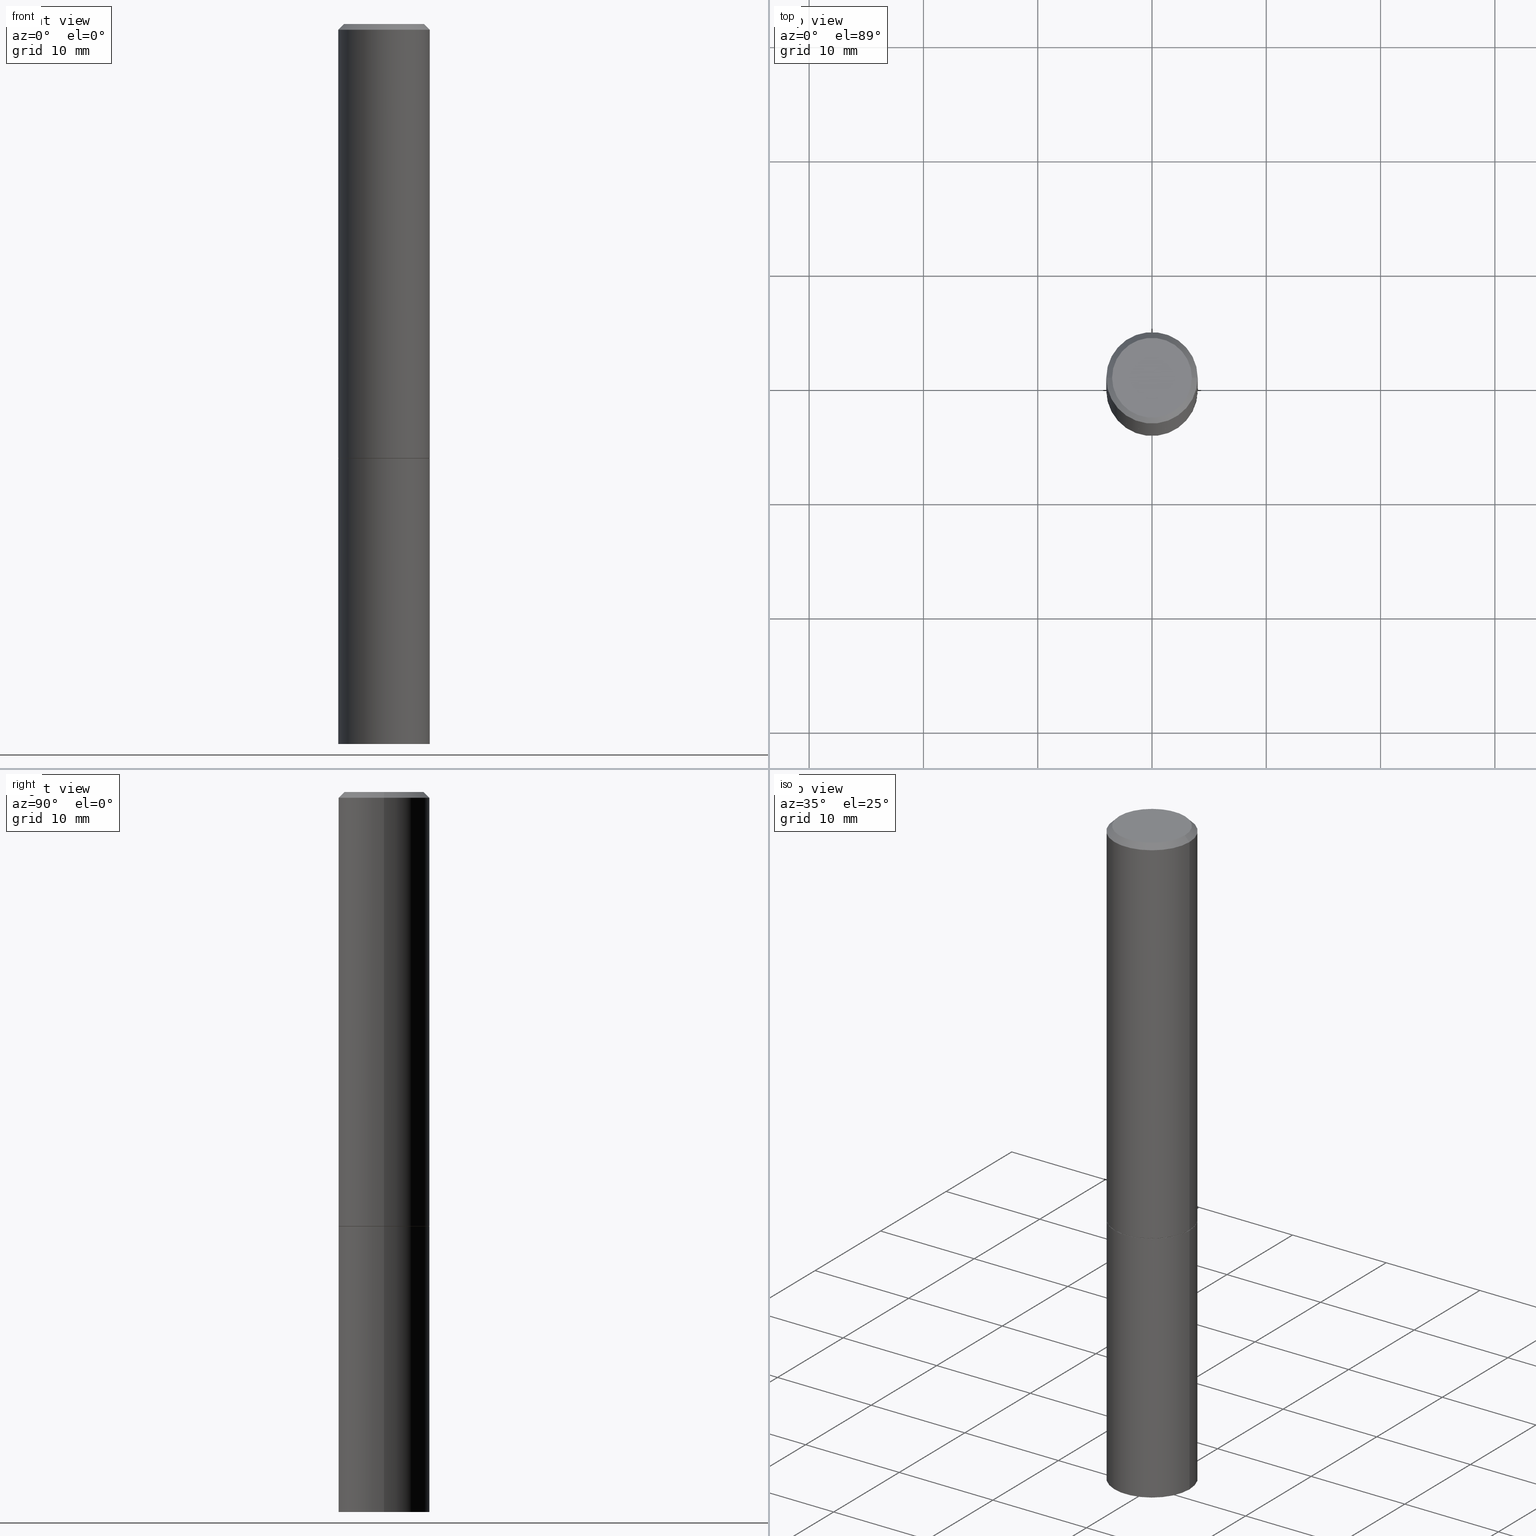
[diagram: canonical four-view strip — front | top / right | iso, engineering-drawing reading convention]
A machine part, canonical four-view strip (front | top / right | iso — engineering-drawing reading convention). The complete STEP part file that produces these views, byte-faithful:
ISO-10303-21;
HEADER;
FILE_DESCRIPTION (( 'STEP AP203' ),
    '1' );
FILE_NAME ('83028.STEP',
    '2024-02-29T21:57:05',
    ( '' ),
    ( '' ),
    'SwSTEP 2.0',
    'SolidWorks 2023',
    '' );
FILE_SCHEMA (( 'CONFIG_CONTROL_DESIGN' ));
ENDSEC;

DATA;
#1 = DIRECTION ( 'NONE',  ( 1.000000000000000000, -6.982962677686266711E-15, 4.876176775795935793E-29 ) ) ;
#2 = AXIS2_PLACEMENT_3D ( 'NONE', #198, #86, #286 ) ;
#3 = CARTESIAN_POINT ( 'NONE',  ( 0.000000000000000000, 0.000000000000000000, 0.000000000000000000 ) ) ;
#4 = ADVANCED_FACE ( 'NONE', ( #124 ), #243, .F. ) ;
#5 = CARTESIAN_POINT ( 'NONE',  ( -2.087702828670439639E-46, 2.980686340760894400E-32, 8.537024980200822558E-18 ) ) ;
#6 = SECURITY_CLASSIFICATION_LEVEL ( 'unclassified' ) ;
#7 = CARTESIAN_POINT ( 'NONE',  ( 0.1575000000000000011, -6.319581223306091410E-15, -1.495000000000000329 ) ) ;
#8 = ORIENTED_EDGE ( 'NONE', *, *, #92, .T. ) ;
#9 = DIRECTION ( 'NONE',  ( -1.000000000000000000, 6.982962677686265922E-15, -4.876176775795935793E-29 ) ) ;
#10 = LENGTH_MEASURE_WITH_UNIT ( LENGTH_MEASURE( 0.02539999999999999897 ), #258 );
#11 = ORIENTED_EDGE ( 'NONE', *, *, #112, .F. ) ;
#12 = VECTOR ( 'NONE', #19, 39.37007874015748143 ) ;
#13 = EDGE_LOOP ( 'NONE', ( #132, #332 ) ) ;
#14 = ORIENTED_EDGE ( 'NONE', *, *, #181, .T. ) ;
#15 = ORIENTED_EDGE ( 'NONE', *, *, #239, .T. ) ;
#16 = CIRCLE ( 'NONE', #325, 0.1574999999999998346 ) ;
#17 = LOCAL_TIME ( 16, 57, 5.000000000000000000, #71 ) ;
#18 = ORIENTED_EDGE ( 'NONE', *, *, #103, .T. ) ;
#19 = DIRECTION ( 'NONE',  ( -2.445468806185136877E-29, 3.491481338843145188E-15, 1.000000000000000000 ) ) ;
#20 = CARTESIAN_POINT ( 'NONE',  ( 6.065496279980994755E-29, -8.659921164732655335E-15, -2.480300000000000171 ) ) ;
#21 = PERSON_AND_ORGANIZATION ( #180, #343 ) ;
#22 = EDGE_CURVE ( 'NONE', #356, #355, #68, .T. ) ;
#23 = DIRECTION ( 'NONE',  ( 1.000000000000000000, -6.982962677686267499E-15, 0.000000000000000000 ) ) ;
#24 = AXIS2_PLACEMENT_3D ( 'NONE', #263, #67, #266 ) ;
#25 = CC_DESIGN_APPROVAL ( #49, ( #77 ) ) ;
#26 = DIRECTION ( 'NONE',  ( -2.445468806185136597E-29, 3.491481338843145583E-15, 1.000000000000000000 ) ) ;
#27 = CARTESIAN_POINT ( 'NONE',  ( -0.1565000000000000002, -4.111256701444791131E-15, -1.496000000000000663 ) ) ;
#28 = DESIGN_CONTEXT ( 'detailed design', #81, 'design' ) ;
#29 = DIRECTION ( 'NONE',  ( -2.445468806185136877E-29, 3.491481338843145188E-15, 1.000000000000000000 ) ) ;
#30 = CARTESIAN_POINT ( 'NONE',  ( -2.087702828670439639E-46, 2.980686340760894400E-32, 8.537024980200822558E-18 ) ) ;
#31 = APPROVAL_STATUS ( 'not_yet_approved' ) ;
#32 = AXIS2_PLACEMENT_3D ( 'NONE', #54, #365, #252 ) ;
#33 = CARTESIAN_POINT ( 'NONE',  ( 3.658421334052965846E-29, -5.223256082909347726E-15, -1.496000000000000663 ) ) ;
#34 = LOCAL_TIME ( 16, 57, 5.000000000000000000, #342 ) ;
#35 = CALENDAR_DATE ( 2024, 29, 2 ) ;
#36 = FACE_OUTER_BOUND ( 'NONE', #276, .T. ) ;
#37 = DIRECTION ( 'NONE',  ( -2.445468806185136597E-29, 3.491481338843145583E-15, 1.000000000000000000 ) ) ;
#38 = APPROVAL_DATE_TIME ( #366, #99 ) ;
#39 = DIRECTION ( 'NONE',  ( -1.000000000000000000, 6.982962677686265922E-15, 0.000000000000000000 ) ) ;
#40 = CIRCLE ( 'NONE', #341, 0.1575000000000000011 ) ;
#41 = ADVANCED_FACE ( 'NONE', ( #135 ), #254, .F. ) ;
#42 = ORIENTED_EDGE ( 'NONE', *, *, #22, .F. ) ;
#43 = APPLICATION_PROTOCOL_DEFINITION ( 'international standard', 'config_control_design', 1994, #81 ) ;
#44 = VERTEX_POINT ( 'NONE', #111 ) ;
#45 = APPROVAL_DATE_TIME ( #354, #49 ) ;
#46 = ORIENTED_EDGE ( 'NONE', *, *, #70, .F. ) ;
#47 = ADVANCED_FACE ( 'NONE', ( #202 ), #174, .T. ) ;
#48 = ORIENTED_EDGE ( 'NONE', *, *, #103, .F. ) ;
#49 = APPROVAL ( #326, 'UNSPECIFIED' ) ;
#50 = ORIENTED_EDGE ( 'NONE', *, *, #318, .F. ) ;
#51 = CLOSED_SHELL ( 'NONE', ( #108, #294, #4, #253 ) ) ;
#52 = CARTESIAN_POINT ( 'NONE',  ( -0.1574999999999998346, 1.029986994958722604E-15, -0.02000000000000003511 ) ) ;
#53 = CARTESIAN_POINT ( 'NONE',  ( -0.1575000000000000011, -5.822483814998842744E-15, -2.480300000000000171 ) ) ;
#54 = CARTESIAN_POINT ( 'NONE',  ( 3.658421334052965846E-29, -5.223256082909347726E-15, -1.496000000000000663 ) ) ;
#55 = EDGE_CURVE ( 'NONE', #300, #303, #228, .T. ) ;
#56 = DIRECTION ( 'NONE',  ( 1.000000000000000000, -6.982962677686265922E-15, 0.000000000000000000 ) ) ;
#57 = DIRECTION ( 'NONE',  ( -2.445468806185136597E-29, 3.491481338843145583E-15, 1.000000000000000000 ) ) ;
#58 = DIRECTION ( 'NONE',  ( -2.445468806185136597E-29, 3.491481338843145583E-15, 1.000000000000000000 ) ) ;
#59 = DIRECTION ( 'NONE',  ( 1.000000000000000000, -6.982962677686261977E-15, 0.000000000000000000 ) ) ;
#60 = DIRECTION ( 'NONE',  ( 1.000000000000000000, -6.982962677686267499E-15, 0.000000000000000000 ) ) ;
#61 = APPLICATION_CONTEXT ( 'configuration controlled 3d designs of mechanical parts and assemblies' ) ;
#62 = COORDINATED_UNIVERSAL_TIME_OFFSET ( 5, 0, .BEHIND. ) ;
#63 = AXIS2_PLACEMENT_3D ( 'NONE', #84, #199, #284 ) ;
#64 = CARTESIAN_POINT ( 'NONE',  ( 3.658421334052965286E-29, -5.223256082909346937E-15, -1.496000000000000441 ) ) ;
#65 =( GEOMETRIC_REPRESENTATION_CONTEXT ( 3 ) GLOBAL_UNCERTAINTY_ASSIGNED_CONTEXT ( ( #105 ) ) GLOBAL_UNIT_ASSIGNED_CONTEXT ( ( #126, #150, #297 ) ) REPRESENTATION_CONTEXT ( 'NONE', 'WORKASPACE' ) );
#66 = ADVANCED_FACE ( 'NONE', ( #340 ), #90, .T. ) ;
#67 = DIRECTION ( 'NONE',  ( 2.445468806185136597E-29, -3.491481338843145583E-15, -1.000000000000000000 ) ) ;
#68 = CIRCLE ( 'NONE', #241, 0.1575000000000000011 ) ;
#69 = CALENDAR_DATE ( 2024, 29, 2 ) ;
#70 = EDGE_CURVE ( 'NONE', #355, #218, #110, .T. ) ;
#71 = COORDINATED_UNIVERSAL_TIME_OFFSET ( 5, 0, .BEHIND. ) ;
#72 = ORIENTED_EDGE ( 'NONE', *, *, #112, .T. ) ;
#73 = COORDINATED_UNIVERSAL_TIME_OFFSET ( 5, 0, .BEHIND. ) ;
#74 = ORIENTED_EDGE ( 'NONE', *, *, #133, .F. ) ;
#75 = PERSON_AND_ORGANIZATION_ROLE ( 'creator' ) ;
#76 = VECTOR ( 'NONE', #195, 39.37007874015748143 ) ;
#77 = PRODUCT_DEFINITION_FORMATION_WITH_SPECIFIED_SOURCE ( 'ANY', '', #335, .NOT_KNOWN. ) ;
#78 = VERTEX_POINT ( 'NONE', #259 ) ;
#79 = ORIENTED_EDGE ( 'NONE', *, *, #55, .T. ) ;
#80 = CARTESIAN_POINT ( 'NONE',  ( -0.1574999999999998901, 1.119104808822157012E-15, -7.747322767151471379E-30 ) ) ;
#81 = APPLICATION_CONTEXT ( 'configuration controlled 3d designs of mechanical parts and assemblies' ) ;
#82 = CC_DESIGN_APPROVAL ( #99, ( #178 ) ) ;
#83 = EDGE_CURVE ( 'NONE', #44, #327, #116, .T. ) ;
#84 = CARTESIAN_POINT ( 'NONE',  ( 0.000000000000000000, 0.000000000000000000, 0.000000000000000000 ) ) ;
#85 = DIRECTION ( 'NONE',  ( -2.445468806185136877E-29, 3.491481338843145188E-15, 1.000000000000000000 ) ) ;
#86 = DIRECTION ( 'NONE',  ( -2.445468806185136597E-29, 3.491481338843145583E-15, 1.000000000000000000 ) ) ;
#87 = LINE ( 'NONE', #165, #12 ) ;
#88 = DIRECTION ( 'NONE',  ( -2.445468806185136597E-29, 3.491481338843145583E-15, 1.000000000000000000 ) ) ;
#89 = DIRECTION ( 'NONE',  ( 1.000000000000000000, -6.982962677686268288E-15, 0.000000000000000000 ) ) ;
#90 = CONICAL_SURFACE ( 'NONE', #331, 0.1565000000000000002, 0.7853981633972775267 ) ;
#91 = CARTESIAN_POINT ( 'NONE',  ( 3.655975865246779683E-29, -5.219764601570503930E-15, -1.495000000000000329 ) ) ;
#92 = EDGE_CURVE ( 'NONE', #44, #358, #319, .T. ) ;
#93 = SHAPE_DEFINITION_REPRESENTATION ( #120, #240 ) ;
#94 = FACE_OUTER_BOUND ( 'NONE', #216, .T. ) ;
#95 = CARTESIAN_POINT ( 'NONE',  ( 9.601573681818602922E-16, 0.1374999999999998446, -4.758101716008314943E-16 ) ) ;
#96 = PERSON_AND_ORGANIZATION_ROLE ( 'classification_officer' ) ;
#97 = AXIS2_PLACEMENT_3D ( 'NONE', #205, #88, #204 ) ;
#98 = PERSON_AND_ORGANIZATION ( #180, #343 ) ;
#99 = APPROVAL ( #31, 'UNSPECIFIED' ) ;
#100 = ORIENTED_EDGE ( 'NONE', *, *, #304, .F. ) ;
#101 = CALENDAR_DATE ( 2024, 29, 2 ) ;
#102 = ORIENTED_EDGE ( 'NONE', *, *, #22, .T. ) ;
#103 = EDGE_CURVE ( 'NONE', #300, #251, #87, .T. ) ;
#104 = ORIENTED_EDGE ( 'NONE', *, *, #290, .F. ) ;
#105 = UNCERTAINTY_MEASURE_WITH_UNIT (LENGTH_MEASURE( 1.000000000000000082E-05 ), #126, 'distance_accuracy_value', 'NONE');
#106 = ORIENTED_EDGE ( 'NONE', *, *, #83, .T. ) ;
#107 = ORIENTED_EDGE ( 'NONE', *, *, #290, .T. ) ;
#108 = ADVANCED_FACE ( 'NONE', ( #279 ), #338, .T. ) ;
#109 = DIRECTION ( 'NONE',  ( -1.000000000000000000, 6.982962677686265922E-15, -4.876176775795935793E-29 ) ) ;
#110 = LINE ( 'NONE', #225, #336 ) ;
#111 = CARTESIAN_POINT ( 'NONE',  ( -0.1374999999999998446, 9.950721815702915469E-16, 8.537024980193986277E-18 ) ) ;
#112 = EDGE_CURVE ( 'NONE', #330, #303, #230, .T. ) ;
#113 = CARTESIAN_POINT ( 'NONE',  ( 3.658421334052965286E-29, -5.223256082909346937E-15, -1.496000000000000441 ) ) ;
#114 = APPROVAL ( #244, 'UNSPECIFIED' ) ;
#115 = AXIS2_PLACEMENT_3D ( 'NONE', #3, #360, #220 ) ;
#116 = LINE ( 'NONE', #52, #265 ) ;
#117 = CYLINDRICAL_SURFACE ( 'NONE', #97, 0.1575000000000000011 ) ;
#118 = PERSON_AND_ORGANIZATION_ROLE ( 'creator' ) ;
#119 = CARTESIAN_POINT ( 'NONE',  ( 0.1574999999999998346, -1.150358061425878091E-15, -0.02000000000000003511 ) ) ;
#120 = PRODUCT_DEFINITION_SHAPE ( 'NONE', 'NONE',  #170 ) ;
#121 = CC_DESIGN_SECURITY_CLASSIFICATION ( #178, ( #77 ) ) ;
#122 = CARTESIAN_POINT ( 'NONE',  ( 0.1565000000000000002, -6.316089741967248403E-15, -1.496000000000000663 ) ) ;
#123 = PERSON_AND_ORGANIZATION ( #180, #343 ) ;
#124 = FACE_OUTER_BOUND ( 'NONE', #246, .T. ) ;
#125 = EDGE_LOOP ( 'NONE', ( #79, #191, #160, #48 ) ) ;
#126 =( CONVERSION_BASED_UNIT ( 'INCH', #10 ) LENGTH_UNIT ( ) NAMED_UNIT ( #350 ) );
#127 = EDGE_CURVE ( 'NONE', #303, #327, #309, .T. ) ;
#128 = EDGE_LOOP ( 'NONE', ( #154, #107, #18, #100 ) ) ;
#129 = MECHANICAL_CONTEXT ( 'NONE', #61, 'mechanical' ) ;
#130 = ORIENTED_EDGE ( 'NONE', *, *, #92, .F. ) ;
#131 = CIRCLE ( 'NONE', #271, 0.1574999999999998346 ) ;
#132 = ORIENTED_EDGE ( 'NONE', *, *, #144, .F. ) ;
#133 = EDGE_CURVE ( 'NONE', #247, #300, #305, .T. ) ;
#134 = DIRECTION ( 'NONE',  ( 1.000000000000000000, -6.982962677686267499E-15, 0.000000000000000000 ) ) ;
#135 = FACE_OUTER_BOUND ( 'NONE', #13, .T. ) ;
#136 = CIRCLE ( 'NONE', #169, 0.1575000000000000011 ) ;
#137 = LINE ( 'NONE', #222, #272 ) ;
#138 = CARTESIAN_POINT ( 'NONE',  ( 3.658421334052965846E-29, -5.223256082909347726E-15, -1.496000000000000663 ) ) ;
#139 = DIRECTION ( 'NONE',  ( 0.7071067811864267805, -2.468850131080992517E-15, 0.7071067811866682540 ) ) ;
#140 = CARTESIAN_POINT ( 'NONE',  ( 0.1374999999999998446, -1.046838268059731308E-15, 8.537024980207840646E-18 ) ) ;
#141 = DIRECTION ( 'NONE',  ( -2.445468806185136597E-29, 3.491481338843145583E-15, 1.000000000000000000 ) ) ;
#142 = APPROVAL_PERSON_ORGANIZATION ( #98, #114, #268 ) ;
#143 = DIRECTION ( 'NONE',  ( 1.000000000000000000, -6.982962677686268288E-15, 0.000000000000000000 ) ) ;
#144 = EDGE_CURVE ( 'NONE', #247, #330, #324, .T. ) ;
#145 = PERSON_AND_ORGANIZATION ( #180, #343 ) ;
#146 = DIRECTION ( 'NONE',  ( 1.000000000000000000, -6.982962677686265922E-15, 4.876173381029105647E-29 ) ) ;
#147 = DIRECTION ( 'NONE',  ( -1.000000000000000000, 6.982962677686265922E-15, -4.876176775795935793E-29 ) ) ;
#148 = EDGE_LOOP ( 'NONE', ( #264, #72, #158, #74 ) ) ;
#149 = CARTESIAN_POINT ( 'NONE',  ( 1.099816621735647434E-15, 0.1574999999999913136, -2.480300000000001059 ) ) ;
#150 =( NAMED_UNIT ( * ) PLANE_ANGLE_UNIT ( ) SI_UNIT ( $, .RADIAN. ) );
#151 = ORIENTED_EDGE ( 'NONE', *, *, #364, .F. ) ;
#152 = APPROVAL_ROLE ( '' ) ;
#153 = VECTOR ( 'NONE', #337, 39.37007874015748143 ) ;
#154 = ORIENTED_EDGE ( 'NONE', *, *, #127, .F. ) ;
#155 = CIRCLE ( 'NONE', #283, 0.1565000000000000002 ) ;
#156 = PERSON_AND_ORGANIZATION_ROLE ( 'design_supplier' ) ;
#157 = EDGE_CURVE ( 'NONE', #251, #327, #131, .T. ) ;
#158 = ORIENTED_EDGE ( 'NONE', *, *, #55, .F. ) ;
#159 = DATE_AND_TIME ( #101, #362 ) ;
#160 = ORIENTED_EDGE ( 'NONE', *, *, #157, .F. ) ;
#161 = EDGE_LOOP ( 'NONE', ( #296, #213, #219, #333 ) ) ;
#162 = AXIS2_PLACEMENT_3D ( 'NONE', #149, #262, #9 ) ;
#163 = AXIS2_PLACEMENT_3D ( 'NONE', #95, #292, #147 ) ;
#164 = CC_DESIGN_DATE_AND_TIME_ASSIGNMENT ( #275, #357, ( #170 ) ) ;
#165 = CARTESIAN_POINT ( 'NONE',  ( 0.1574999999999998901, -1.099816621735586297E-15, 7.679978421878593829E-30 ) ) ;
#166 = DIRECTION ( 'NONE',  ( -2.445468806185136597E-29, 3.491481338843145583E-15, 1.000000000000000000 ) ) ;
#167 = DIRECTION ( 'NONE',  ( 1.000000000000000000, -6.982962677686265922E-15, 0.000000000000000000 ) ) ;
#168 = CYLINDRICAL_SURFACE ( 'NONE', #361, 0.1574999999999998901 ) ;
#169 = AXIS2_PLACEMENT_3D ( 'NONE', #64, #182, #143 ) ;
#170 = PRODUCT_DEFINITION ( 'UNKNOWN', '', #77, #28 ) ;
#171 = CARTESIAN_POINT ( 'NONE',  ( 6.065496279980994755E-29, -8.659921164732655335E-15, -2.480300000000000171 ) ) ;
#172 = DIRECTION ( 'NONE',  ( -2.445468806185136597E-29, 3.491481338843145583E-15, 1.000000000000000000 ) ) ;
#173 = CARTESIAN_POINT ( 'NONE',  ( -0.1565000000000000002, -4.105958247096567940E-15, -1.496000000000000663 ) ) ;
#174 = CYLINDRICAL_SURFACE ( 'NONE', #63, 0.1574999999999998901 ) ;
#175 = CARTESIAN_POINT ( 'NONE',  ( -0.1575000000000000011, -5.822483814998842744E-15, -1.496000000000000441 ) ) ;
#176 = ADVANCED_FACE ( 'NONE', ( #256 ), #168, .T. ) ;
#177 = AXIS2_PLACEMENT_3D ( 'NONE', #30, #141, #224 ) ;
#178 = SECURITY_CLASSIFICATION ( '', '', #6 ) ;
#179 = FACE_OUTER_BOUND ( 'NONE', #189, .T. ) ;
#180 = PERSON ( 'UNSPECIFIED', 'UNSPECIFIED', 'UNSPECIFIED', ('UNSPECIFIED'), ('UNSPECIFIED'), ('UNSPECIFIED') ) ;
#181 = EDGE_CURVE ( 'NONE', #78, #218, #248, .T. ) ;
#182 = DIRECTION ( 'NONE',  ( -2.445468806185136597E-29, 3.491481338843145583E-15, 1.000000000000000000 ) ) ;
#183 = CC_DESIGN_DATE_AND_TIME_ASSIGNMENT ( #295, #186, ( #178 ) ) ;
#184 = VECTOR ( 'NONE', #233, 39.37007874015748143 ) ;
#185 = LOCAL_TIME ( 16, 57, 5.000000000000000000, #62 ) ;
#186 = DATE_TIME_ROLE ( 'classification_date' ) ;
#187 = ORIENTED_EDGE ( 'NONE', *, *, #70, .T. ) ;
#188 = ADVANCED_FACE ( 'NONE', ( #94 ), #317, .F. ) ;
#189 = EDGE_LOOP ( 'NONE', ( #46, #269, #298, #334 ) ) ;
#190 = APPROVAL_DATE_TIME ( #159, #114 ) ;
#191 = ORIENTED_EDGE ( 'NONE', *, *, #127, .T. ) ;
#192 = ORIENTED_EDGE ( 'NONE', *, *, #133, .T. ) ;
#193 = MANIFOLD_SOLID_BREP ( 'Body-Move/Copy2[1]', #51 ) ;
#194 = ORIENTED_EDGE ( 'NONE', *, *, #181, .F. ) ;
#195 = DIRECTION ( 'NONE',  ( -2.445468806185136877E-29, 3.491481338843145188E-15, 1.000000000000000000 ) ) ;
#196 = CC_DESIGN_APPROVAL ( #114, ( #170 ) ) ;
#197 = CARTESIAN_POINT ( 'NONE',  ( 0.1565000000000000002, -6.316089741967248403E-15, -1.496000000000000663 ) ) ;
#198 = CARTESIAN_POINT ( 'NONE',  ( 3.655975865246779683E-29, -5.219764601570503930E-15, -1.495000000000000329 ) ) ;
#199 = DIRECTION ( 'NONE',  ( -2.445468806185136597E-29, 3.491481338843145583E-15, 1.000000000000000000 ) ) ;
#200 = AXIS2_PLACEMENT_3D ( 'NONE', #208, #291, #39 ) ;
#201 = DIRECTION ( 'NONE',  ( -2.445468806185136597E-29, 3.491481338843145583E-15, 1.000000000000000000 ) ) ;
#202 = FACE_OUTER_BOUND ( 'NONE', #125, .T. ) ;
#203 = EDGE_CURVE ( 'NONE', #358, #44, #206, .T. ) ;
#204 = DIRECTION ( 'NONE',  ( 1.000000000000000000, -6.982962677686265922E-15, 4.876176775795935232E-29 ) ) ;
#205 = CARTESIAN_POINT ( 'NONE',  ( 0.000000000000000000, 0.000000000000000000, 0.000000000000000000 ) ) ;
#206 = CIRCLE ( 'NONE', #293, 0.1374999999999998446 ) ;
#207 = LOCAL_TIME ( 16, 57, 5.000000000000000000, #323 ) ;
#208 = CARTESIAN_POINT ( 'NONE',  ( 4.890937612370281041E-31, -6.982962677686302702E-17, -0.02000000000000003511 ) ) ;
#209 = DIRECTION ( 'NONE',  ( -2.445468806185136597E-29, 3.491481338843145583E-15, 1.000000000000000000 ) ) ;
#210 = VECTOR ( 'NONE', #139, 39.37007874015748143 ) ;
#211 = PERSON_AND_ORGANIZATION ( #180, #343 ) ;
#212 = ADVANCED_FACE ( 'NONE', ( #36 ), #234, .T. ) ;
#213 = ORIENTED_EDGE ( 'NONE', *, *, #301, .T. ) ;
#214 = ORIENTED_EDGE ( 'NONE', *, *, #329, .T. ) ;
#215 = DIRECTION ( 'NONE',  ( 1.000000000000000000, 0.000000000000000000, 0.000000000000000000 ) ) ;
#216 = EDGE_LOOP ( 'NONE', ( #8, #250 ) ) ;
#217 = AXIS2_PLACEMENT_3D ( 'NONE', #288, #316, #215 ) ;
#218 = VERTEX_POINT ( 'NONE', #175 ) ;
#219 = ORIENTED_EDGE ( 'NONE', *, *, #157, .T. ) ;
#220 = DIRECTION ( 'NONE',  ( 1.000000000000000000, -6.982962677686265922E-15, 4.876176775795935232E-29 ) ) ;
#221 = AXIS2_PLACEMENT_3D ( 'NONE', #353, #278, #109 ) ;
#222 = CARTESIAN_POINT ( 'NONE',  ( 0.1575000000000000011, -1.099816621735586889E-15, 7.679978421878598033E-30 ) ) ;
#223 = ADVANCED_FACE ( 'NONE', ( #287 ), #346, .T. ) ;
#224 = DIRECTION ( 'NONE',  ( 1.000000000000000000, -6.982962677686265922E-15, 4.876173381029105647E-29 ) ) ;
#225 = CARTESIAN_POINT ( 'NONE',  ( -0.1575000000000000011, 1.119104808822157801E-15, -7.747322767151475583E-30 ) ) ;
#226 = DIRECTION ( 'NONE',  ( 1.000000000000000000, -6.982962677686268288E-15, 0.000000000000000000 ) ) ;
#227 = APPROVAL_ROLE ( '' ) ;
#228 = CIRCLE ( 'NONE', #2, 0.1575000000000000011 ) ;
#229 = APPROVAL_PERSON_ORGANIZATION ( #211, #49, #152 ) ;
#230 = LINE ( 'NONE', #27, #153 ) ;
#231 = FACE_OUTER_BOUND ( 'NONE', #161, .T. ) ;
#232 = CALENDAR_DATE ( 2024, 29, 2 ) ;
#233 = DIRECTION ( 'NONE',  ( 0.7071067811865466846, -7.319954787623252890E-15, -0.7071067811865483499 ) ) ;
#234 = CONICAL_SURFACE ( 'NONE', #255, 0.1565000000000000002, 0.7853981633972775267 ) ;
#235 = AXIS2_PLACEMENT_3D ( 'NONE', #171, #201, #306 ) ;
#236 = CC_DESIGN_PERSON_AND_ORGANIZATION_ASSIGNMENT ( #123, #351, ( #335 ) ) ;
#237 = LINE ( 'NONE', #119, #184 ) ;
#238 = PERSON_AND_ORGANIZATION ( #180, #343 ) ;
#239 = EDGE_CURVE ( 'NONE', #218, #78, #136, .T. ) ;
#240 = ADVANCED_BREP_SHAPE_REPRESENTATION ( '83028', ( #193, #315, #217 ), #65 ) ;
#241 = AXIS2_PLACEMENT_3D ( 'NONE', #20, #314, #59 ) ;
#242 = APPROVAL_PERSON_ORGANIZATION ( #21, #99, #227 ) ;
#243 = PLANE ( 'NONE',  #221 ) ;
#244 = APPROVAL_STATUS ( 'not_yet_approved' ) ;
#245 = PRODUCT_RELATED_PRODUCT_CATEGORY ( 'detail', '', ( #335 ) ) ;
#246 = EDGE_LOOP ( 'NONE', ( #14, #15 ) ) ;
#247 = VERTEX_POINT ( 'NONE', #122 ) ;
#248 = CIRCLE ( 'NONE', #260, 0.1575000000000000011 ) ;
#249 = CC_DESIGN_PERSON_AND_ORGANIZATION_ASSIGNMENT ( #238, #96, ( #178 ) ) ;
#250 = ORIENTED_EDGE ( 'NONE', *, *, #203, .T. ) ;
#251 = VERTEX_POINT ( 'NONE', #261 ) ;
#252 = DIRECTION ( 'NONE',  ( 1.000000000000000000, -6.982962677686265922E-15, 4.876176775795935793E-29 ) ) ;
#253 = ADVANCED_FACE ( 'NONE', ( #179 ), #117, .T. ) ;
#254 = PLANE ( 'NONE',  #32 ) ;
#255 = AXIS2_PLACEMENT_3D ( 'NONE', #33, #322, #60 ) ;
#256 = FACE_OUTER_BOUND ( 'NONE', #128, .T. ) ;
#257 = CARTESIAN_POINT ( 'NONE',  ( 0.000000000000000000, 0.000000000000000000, 0.000000000000000000 ) ) ;
#258 =( LENGTH_UNIT ( ) NAMED_UNIT ( * ) SI_UNIT ( $, .METRE. ) );
#259 = CARTESIAN_POINT ( 'NONE',  ( 0.1575000000000000011, -6.323072704644934417E-15, -1.496000000000000441 ) ) ;
#260 = AXIS2_PLACEMENT_3D ( 'NONE', #113, #26, #226 ) ;
#261 = CARTESIAN_POINT ( 'NONE',  ( 0.1574999999999998346, -1.150358061425878091E-15, -0.02000000000000003511 ) ) ;
#262 = DIRECTION ( 'NONE',  ( 2.438088387897960049E-29, -3.491481338843145188E-15, -1.000000000000000000 ) ) ;
#263 = CARTESIAN_POINT ( 'NONE',  ( 4.890937612370281041E-31, -6.982962677686302702E-17, -0.02000000000000003511 ) ) ;
#264 = ORIENTED_EDGE ( 'NONE', *, *, #144, .T. ) ;
#265 = VECTOR ( 'NONE', #310, 39.37007874015748143 ) ;
#266 = DIRECTION ( 'NONE',  ( -1.000000000000000000, 6.982962677686265922E-15, 0.000000000000000000 ) ) ;
#267 = ADVANCED_FACE ( 'NONE', ( #231 ), #311, .T. ) ;
#268 = APPROVAL_ROLE ( '' ) ;
#269 = ORIENTED_EDGE ( 'NONE', *, *, #318, .T. ) ;
#270 = PERSON_AND_ORGANIZATION ( #180, #343 ) ;
#271 = AXIS2_PLACEMENT_3D ( 'NONE', #339, #172, #56 ) ;
#272 = VECTOR ( 'NONE', #29, 39.37007874015748143 ) ;
#273 = EDGE_LOOP ( 'NONE', ( #102, #187, #194, #151 ) ) ;
#274 = ORIENTED_EDGE ( 'NONE', *, *, #301, .F. ) ;
#275 = DATE_AND_TIME ( #299, #185 ) ;
#276 = EDGE_LOOP ( 'NONE', ( #11, #214, #192, #104 ) ) ;
#277 = EDGE_LOOP ( 'NONE', ( #42, #50 ) ) ;
#278 = DIRECTION ( 'NONE',  ( 2.438088387897960049E-29, -3.491481338843145188E-15, -1.000000000000000000 ) ) ;
#279 = FACE_OUTER_BOUND ( 'NONE', #273, .T. ) ;
#280 = CARTESIAN_POINT ( 'NONE',  ( 3.658421334052965846E-29, -5.223256082909347726E-15, -1.496000000000000663 ) ) ;
#281 = DIRECTION ( 'NONE',  ( -2.445468806185136597E-29, 3.491481338843145583E-15, 1.000000000000000000 ) ) ;
#282 = AXIS2_PLACEMENT_3D ( 'NONE', #138, #57, #308 ) ;
#283 = AXIS2_PLACEMENT_3D ( 'NONE', #280, #58, #23 ) ;
#284 = DIRECTION ( 'NONE',  ( 1.000000000000000000, -6.982962677686266711E-15, 4.876176775795935793E-29 ) ) ;
#285 = CARTESIAN_POINT ( 'NONE',  ( 0.1575000000000000011, -9.759737786468242027E-15, -2.480300000000000171 ) ) ;
#286 = DIRECTION ( 'NONE',  ( 1.000000000000000000, -6.982962677686268288E-15, 0.000000000000000000 ) ) ;
#287 = FACE_OUTER_BOUND ( 'NONE', #359, .T. ) ;
#288 = CARTESIAN_POINT ( 'NONE',  ( 0.000000000000000000, 0.000000000000000000, 0.000000000000000000 ) ) ;
#289 = PLANE ( 'NONE',  #162 ) ;
#290 = EDGE_CURVE ( 'NONE', #303, #300, #40, .T. ) ;
#291 = DIRECTION ( 'NONE',  ( 2.445468806185136597E-29, -3.491481338843145583E-15, -1.000000000000000000 ) ) ;
#292 = DIRECTION ( 'NONE',  ( 2.438088387897960049E-29, -3.491481338843145188E-15, -1.000000000000000000 ) ) ;
#293 = AXIS2_PLACEMENT_3D ( 'NONE', #5, #209, #146 ) ;
#294 = ADVANCED_FACE ( 'NONE', ( #321 ), #289, .T. ) ;
#295 = DATE_AND_TIME ( #69, #207 ) ;
#296 = ORIENTED_EDGE ( 'NONE', *, *, #203, .F. ) ;
#297 =( NAMED_UNIT ( * ) SI_UNIT ( $, .STERADIAN. ) SOLID_ANGLE_UNIT ( ) );
#298 = ORIENTED_EDGE ( 'NONE', *, *, #364, .T. ) ;
#299 = CALENDAR_DATE ( 2024, 29, 2 ) ;
#300 = VERTEX_POINT ( 'NONE', #7 ) ;
#301 = EDGE_CURVE ( 'NONE', #358, #251, #237, .T. ) ;
#302 = ORIENTED_EDGE ( 'NONE', *, *, #304, .T. ) ;
#303 = VERTEX_POINT ( 'NONE', #345 ) ;
#304 = EDGE_CURVE ( 'NONE', #327, #251, #16, .T. ) ;
#305 = LINE ( 'NONE', #197, #210 ) ;
#306 = DIRECTION ( 'NONE',  ( 1.000000000000000000, -6.982962677686261977E-15, 0.000000000000000000 ) ) ;
#307 = CC_DESIGN_PERSON_AND_ORGANIZATION_ASSIGNMENT ( #270, #118, ( #77 ) ) ;
#308 = DIRECTION ( 'NONE',  ( 1.000000000000000000, -6.982962677686267499E-15, 0.000000000000000000 ) ) ;
#309 = LINE ( 'NONE', #80, #76 ) ;
#310 = DIRECTION ( 'NONE',  ( -0.7071067811865466846, 2.468850131082247989E-15, -0.7071067811865483499 ) ) ;
#311 = CONICAL_SURFACE ( 'NONE', #200, 0.1574999999999998346, 0.7853981633974471688 ) ;
#312 = CC_DESIGN_PERSON_AND_ORGANIZATION_ASSIGNMENT ( #348, #75, ( #170 ) ) ;
#313 = CARTESIAN_POINT ( 'NONE',  ( -0.1574999999999998346, 1.029986994958722604E-15, -0.02000000000000003511 ) ) ;
#314 = DIRECTION ( 'NONE',  ( -2.445468806185136597E-29, 3.491481338843145583E-15, 1.000000000000000000 ) ) ;
#315 = MANIFOLD_SOLID_BREP ( 'Body-Move/Copy2[2]', #352 ) ;
#316 = DIRECTION ( 'NONE',  ( 0.000000000000000000, 0.000000000000000000, 1.000000000000000000 ) ) ;
#317 = PLANE ( 'NONE',  #163 ) ;
#318 = EDGE_CURVE ( 'NONE', #355, #356, #320, .T. ) ;
#319 = CIRCLE ( 'NONE', #177, 0.1374999999999998446 ) ;
#320 = CIRCLE ( 'NONE', #235, 0.1575000000000000011 ) ;
#321 = FACE_OUTER_BOUND ( 'NONE', #277, .T. ) ;
#322 = DIRECTION ( 'NONE',  ( -2.445468806185136597E-29, 3.491481338843145583E-15, 1.000000000000000000 ) ) ;
#323 = COORDINATED_UNIVERSAL_TIME_OFFSET ( 5, 0, .BEHIND. ) ;
#324 = CIRCLE ( 'NONE', #282, 0.1565000000000000002 ) ;
#325 = AXIS2_PLACEMENT_3D ( 'NONE', #347, #37, #167 ) ;
#326 = APPROVAL_STATUS ( 'not_yet_approved' ) ;
#327 = VERTEX_POINT ( 'NONE', #313 ) ;
#328 = APPLICATION_PROTOCOL_DEFINITION ( 'international standard', 'config_control_design', 1994, #61 ) ;
#329 = EDGE_CURVE ( 'NONE', #330, #247, #155, .T. ) ;
#330 = VERTEX_POINT ( 'NONE', #173 ) ;
#331 = AXIS2_PLACEMENT_3D ( 'NONE', #363, #166, #134 ) ;
#332 = ORIENTED_EDGE ( 'NONE', *, *, #329, .F. ) ;
#333 = ORIENTED_EDGE ( 'NONE', *, *, #83, .F. ) ;
#334 = ORIENTED_EDGE ( 'NONE', *, *, #239, .F. ) ;
#335 = PRODUCT ( '83028', '83028', '', ( #129 ) ) ;
#336 = VECTOR ( 'NONE', #85, 39.37007874015748143 ) ;
#337 = DIRECTION ( 'NONE',  ( -0.7071067811864267805, 7.493145998869918709E-15, 0.7071067811866682540 ) ) ;
#338 = CYLINDRICAL_SURFACE ( 'NONE', #115, 0.1575000000000000011 ) ;
#339 = CARTESIAN_POINT ( 'NONE',  ( 4.890937612370281041E-31, -6.982962677686302702E-17, -0.02000000000000003511 ) ) ;
#340 = FACE_OUTER_BOUND ( 'NONE', #148, .T. ) ;
#341 = AXIS2_PLACEMENT_3D ( 'NONE', #91, #344, #89 ) ;
#342 = COORDINATED_UNIVERSAL_TIME_OFFSET ( 5, 0, .BEHIND. ) ;
#343 = ORGANIZATION ( 'UNSPECIFIED', 'UNSPECIFIED', '' ) ;
#344 = DIRECTION ( 'NONE',  ( -2.445468806185136597E-29, 3.491481338843145583E-15, 1.000000000000000000 ) ) ;
#345 = CARTESIAN_POINT ( 'NONE',  ( -0.1575000000000000011, -1.525692305351524236E-15, -1.495000000000000329 ) ) ;
#346 = CONICAL_SURFACE ( 'NONE', #24, 0.1574999999999998346, 0.7853981633974471688 ) ;
#347 = CARTESIAN_POINT ( 'NONE',  ( 4.890937612370281041E-31, -6.982962677686302702E-17, -0.02000000000000003511 ) ) ;
#348 = PERSON_AND_ORGANIZATION ( #180, #343 ) ;
#349 = CC_DESIGN_PERSON_AND_ORGANIZATION_ASSIGNMENT ( #145, #156, ( #77 ) ) ;
#350 = DIMENSIONAL_EXPONENTS ( 1.000000000000000000, 0.000000000000000000, 0.000000000000000000, 0.000000000000000000, 0.000000000000000000, 0.000000000000000000, 0.000000000000000000 ) ;
#351 = PERSON_AND_ORGANIZATION_ROLE ( 'design_owner' ) ;
#352 = CLOSED_SHELL ( 'NONE', ( #66, #47, #267, #223, #176, #212, #41, #188 ) ) ;
#353 = CARTESIAN_POINT ( 'NONE',  ( 1.099816621735623373E-15, 0.1574999999999947553, -1.496000000000000885 ) ) ;
#354 = DATE_AND_TIME ( #35, #17 ) ;
#355 = VERTEX_POINT ( 'NONE', #53 ) ;
#356 = VERTEX_POINT ( 'NONE', #285 ) ;
#357 = DATE_TIME_ROLE ( 'creation_date' ) ;
#358 = VERTEX_POINT ( 'NONE', #140 ) ;
#359 = EDGE_LOOP ( 'NONE', ( #274, #130, #106, #302 ) ) ;
#360 = DIRECTION ( 'NONE',  ( -2.445468806185136597E-29, 3.491481338843145583E-15, 1.000000000000000000 ) ) ;
#361 = AXIS2_PLACEMENT_3D ( 'NONE', #257, #281, #1 ) ;
#362 = LOCAL_TIME ( 16, 57, 5.000000000000000000, #73 ) ;
#363 = CARTESIAN_POINT ( 'NONE',  ( 3.658421334052965846E-29, -5.223256082909347726E-15, -1.496000000000000663 ) ) ;
#364 = EDGE_CURVE ( 'NONE', #356, #78, #137, .T. ) ;
#365 = DIRECTION ( 'NONE',  ( -2.438088387897960049E-29, 3.491481338843145188E-15, 1.000000000000000000 ) ) ;
#366 = DATE_AND_TIME ( #232, #34 ) ;
ENDSEC;
END-ISO-10303-21;
